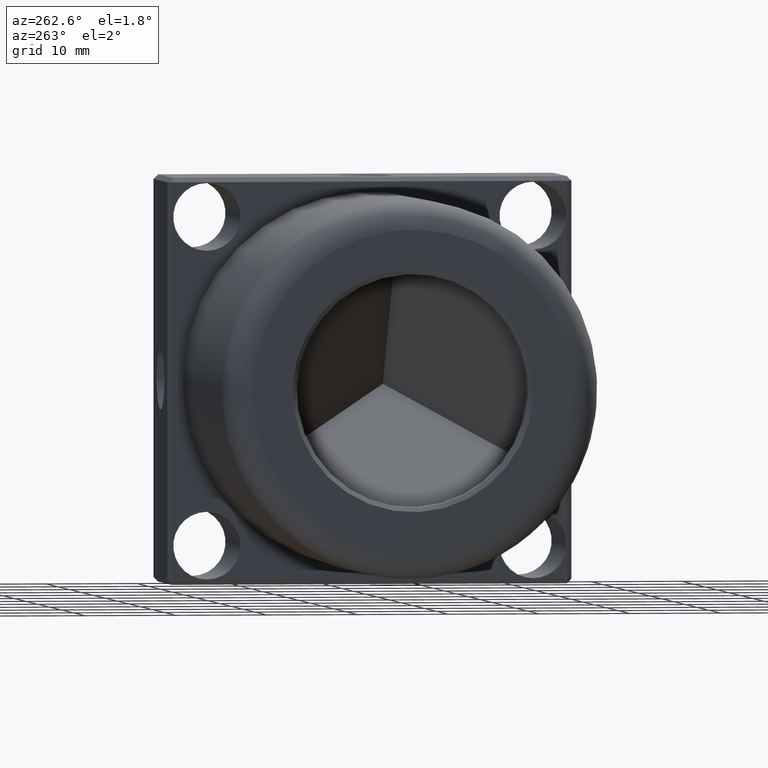
[diagram: clean part render]
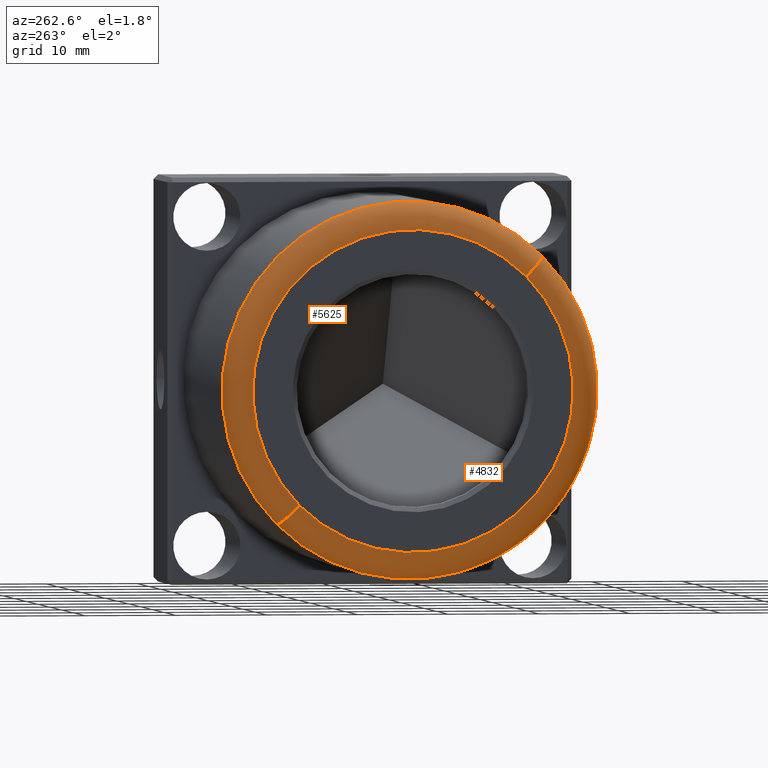
[diagram: same view with one multi-face feature highlighted, each face labeled with its STEP entity id]
A machine part, auxiliary view. The highlighted faces form ONE feature: a constant-radius fillet chain: 2 tangent blend faces with common blend radius 3 mm. The faces share edges in the B-rep.
Their STEP definitions:
[1] entity #5625 (Torus):
#118 = AXIS2_PLACEMENT_3D ( 'NONE', #7734, #11376, #5766 ) ;
#164 = ORIENTED_EDGE ( 'NONE', *, *, #4706, .F. ) ;
#208 = DIRECTION ( 'NONE',  ( -1.465710528437472200E-017, -0.7071067811865410200, -0.7071067811865540100 ) ) ;
#450 = CARTESIAN_POINT ( 'NONE',  ( 2.999999999999998200, -14.60175503150233900, 14.60175503150207600 ) ) ;
#482 = EDGE_CURVE ( 'NONE', #9974, #8389, #8997, .T. ) ;
#928 = CIRCLE ( 'NONE', #5927, 20.64999999999999900 ) ;
#1043 = AXIS2_PLACEMENT_3D ( 'NONE', #1088, #7632, #2011 ) ;
#1088 = CARTESIAN_POINT ( 'NONE',  ( 3.000000000000001300, 12.48043468794268000, -12.48043468794244700 ) ) ;
#1771 = ORIENTED_EDGE ( 'NONE', *, *, #5656, .F. ) ;
#2011 = DIRECTION ( 'NONE',  ( 0.0000000000000000000, -0.7071067811865541200, 0.7071067811865408000 ) ) ;
#2558 = CIRCLE ( 'NONE', #6806, 17.64999999999999900 ) ;
#3344 = CIRCLE ( 'NONE', #11631, 3.000000000000000400 ) ;
#4000 = EDGE_CURVE ( 'NONE', #8892, #8389, #2558, .T. ) ;
#4519 = FACE_OUTER_BOUND ( 'NONE', #7840, .T. ) ;
#4706 = EDGE_CURVE ( 'NONE', #9974, #12001, #928, .T. ) ;
#5046 = DIRECTION ( 'NONE',  ( -1.000000000000000000, 6.489919646852779600E-017, -4.417091939023369800E-017 ) ) ;
#5281 = CARTESIAN_POINT ( 'NONE',  ( 3.000000000000001800, 14.60175503150234300, -14.60175503150207600 ) ) ;
#5538 = DIRECTION ( 'NONE',  ( 1.000000000000000000, -6.489919646852779600E-017, 4.417091939023369800E-017 ) ) ;
#5625 = ADVANCED_FACE ( 'NONE', ( #4519 ), #10821, .T. ) ;
#5656 = EDGE_CURVE ( 'NONE', #12001, #8892, #3344, .T. ) ;
#5766 = DIRECTION ( 'NONE',  ( -7.712421854853279000E-017, -0.7071067811865540100, 0.7071067811865410200 ) ) ;
#5802 = CARTESIAN_POINT ( 'NONE',  ( 2.999999999999998700, -12.48043468794267800, 12.48043468794244900 ) ) ;
#5907 = ORIENTED_EDGE ( 'NONE', *, *, #4000, .F. ) ;
#5927 = AXIS2_PLACEMENT_3D ( 'NONE', #11157, #5538, #12097 ) ;
#6767 = DIRECTION ( 'NONE',  ( 0.0000000000000000000, 0.7071067811865541200, -0.7071067811865408000 ) ) ;
#6806 = AXIS2_PLACEMENT_3D ( 'NONE', #10677, #5046, #11602 ) ;
#7627 = CARTESIAN_POINT ( 'NONE',  ( 1.331142532182104700E-015, 12.48043468794268000, -12.48043468794244700 ) ) ;
#7632 = DIRECTION ( 'NONE',  ( 1.465710528437471500E-017, 0.7071067811865409100, 0.7071067811865541200 ) ) ;
#7734 = CARTESIAN_POINT ( 'NONE',  ( 3.000000000000000000, -1.946975894055834000E-016, 1.325127581707011100E-016 ) ) ;
#7840 = EDGE_LOOP ( 'NONE', ( #164, #8012, #5907, #1771 ) ) ;
#8012 = ORIENTED_EDGE ( 'NONE', *, *, #482, .T. ) ;
#8389 = VERTEX_POINT ( 'NONE', #7627 ) ;
#8892 = VERTEX_POINT ( 'NONE', #10458 ) ;
#8997 = CIRCLE ( 'NONE', #1043, 3.000000000000000400 ) ;
#9974 = VERTEX_POINT ( 'NONE', #5281 ) ;
#10458 = CARTESIAN_POINT ( 'NONE',  ( -1.114302097685003900E-015, -12.48043468794267800, 12.48043468794244900 ) ) ;
#10677 = CARTESIAN_POINT ( 'NONE',  ( 0.0000000000000000000, 0.0000000000000000000, 0.0000000000000000000 ) ) ;
#10821 = TOROIDAL_SURFACE ( 'NONE', #118, 17.64999999999999900, 3.000000000000000000 ) ;
#11157 = CARTESIAN_POINT ( 'NONE',  ( 3.000000000000000000, -1.946975894055834000E-016, 1.325127581707011100E-016 ) ) ;
#11376 = DIRECTION ( 'NONE',  ( -1.000000000000000000, 6.489919646852779600E-017, -4.417091939023369800E-017 ) ) ;
#11602 = DIRECTION ( 'NONE',  ( -7.712421854853281400E-017, -0.7071067811865540100, 0.7071067811865410200 ) ) ;
#11631 = AXIS2_PLACEMENT_3D ( 'NONE', #5802, #208, #6767 ) ;
#12001 = VERTEX_POINT ( 'NONE', #450 ) ;
#12097 = DIRECTION ( 'NONE',  ( -8.400597946618920700E-017, -0.7071067811865541200, 0.7071067811865411300 ) ) ;
[2] entity #4832 (Torus):
#208 = DIRECTION ( 'NONE',  ( -1.465710528437472200E-017, -0.7071067811865410200, -0.7071067811865540100 ) ) ;
#450 = CARTESIAN_POINT ( 'NONE',  ( 2.999999999999998200, -14.60175503150233900, 14.60175503150207600 ) ) ;
#482 = EDGE_CURVE ( 'NONE', #9974, #8389, #8997, .T. ) ;
#599 = DIRECTION ( 'NONE',  ( -8.400597946618920700E-017, -0.7071067811865541200, 0.7071067811865411300 ) ) ;
#1043 = AXIS2_PLACEMENT_3D ( 'NONE', #1088, #7632, #2011 ) ;
#1062 = EDGE_LOOP ( 'NONE', ( #5267, #4536, #3529, #10384 ) ) ;
#1088 = CARTESIAN_POINT ( 'NONE',  ( 3.000000000000001300, 12.48043468794268000, -12.48043468794244700 ) ) ;
#1259 = DIRECTION ( 'NONE',  ( -1.000000000000000000, 6.489919646852779600E-017, -4.417091939023369800E-017 ) ) ;
#2011 = DIRECTION ( 'NONE',  ( 0.0000000000000000000, -0.7071067811865541200, 0.7071067811865408000 ) ) ;
#2030 = DIRECTION ( 'NONE',  ( -7.712421854853279000E-017, -0.7071067811865540100, 0.7071067811865410200 ) ) ;
#3012 = AXIS2_PLACEMENT_3D ( 'NONE', #6884, #1259, #7810 ) ;
#3344 = CIRCLE ( 'NONE', #11631, 3.000000000000000400 ) ;
#3529 = ORIENTED_EDGE ( 'NONE', *, *, #5656, .T. ) ;
#3960 = EDGE_CURVE ( 'NONE', #8389, #8892, #8444, .T. ) ;
#4279 = TOROIDAL_SURFACE ( 'NONE', #10068, 17.64999999999999900, 3.000000000000000000 ) ;
#4536 = ORIENTED_EDGE ( 'NONE', *, *, #8121, .F. ) ;
#4726 = CARTESIAN_POINT ( 'NONE',  ( 3.000000000000000000, -1.946975894055834000E-016, 1.325127581707011100E-016 ) ) ;
#4832 = ADVANCED_FACE ( 'NONE', ( #5160 ), #4279, .T. ) ;
#4965 = AXIS2_PLACEMENT_3D ( 'NONE', #11822, #6210, #599 ) ;
#5160 = FACE_OUTER_BOUND ( 'NONE', #1062, .T. ) ;
#5267 = ORIENTED_EDGE ( 'NONE', *, *, #482, .F. ) ;
#5281 = CARTESIAN_POINT ( 'NONE',  ( 3.000000000000001800, 14.60175503150234300, -14.60175503150207600 ) ) ;
#5646 = CIRCLE ( 'NONE', #4965, 20.64999999999999900 ) ;
#5656 = EDGE_CURVE ( 'NONE', #12001, #8892, #3344, .T. ) ;
#5802 = CARTESIAN_POINT ( 'NONE',  ( 2.999999999999998700, -12.48043468794267800, 12.48043468794244900 ) ) ;
#6210 = DIRECTION ( 'NONE',  ( 1.000000000000000000, -6.489919646852779600E-017, 4.417091939023369800E-017 ) ) ;
#6767 = DIRECTION ( 'NONE',  ( 0.0000000000000000000, 0.7071067811865541200, -0.7071067811865408000 ) ) ;
#6884 = CARTESIAN_POINT ( 'NONE',  ( 0.0000000000000000000, 0.0000000000000000000, 0.0000000000000000000 ) ) ;
#7627 = CARTESIAN_POINT ( 'NONE',  ( 1.331142532182104700E-015, 12.48043468794268000, -12.48043468794244700 ) ) ;
#7632 = DIRECTION ( 'NONE',  ( 1.465710528437471500E-017, 0.7071067811865409100, 0.7071067811865541200 ) ) ;
#7654 = DIRECTION ( 'NONE',  ( -1.000000000000000000, 6.489919646852779600E-017, -4.417091939023369800E-017 ) ) ;
#7810 = DIRECTION ( 'NONE',  ( -7.712421854853281400E-017, -0.7071067811865540100, 0.7071067811865410200 ) ) ;
#8121 = EDGE_CURVE ( 'NONE', #12001, #9974, #5646, .T. ) ;
#8389 = VERTEX_POINT ( 'NONE', #7627 ) ;
#8444 = CIRCLE ( 'NONE', #3012, 17.64999999999999900 ) ;
#8892 = VERTEX_POINT ( 'NONE', #10458 ) ;
#8997 = CIRCLE ( 'NONE', #1043, 3.000000000000000400 ) ;
#9974 = VERTEX_POINT ( 'NONE', #5281 ) ;
#10068 = AXIS2_PLACEMENT_3D ( 'NONE', #4726, #7654, #2030 ) ;
#10384 = ORIENTED_EDGE ( 'NONE', *, *, #3960, .F. ) ;
#10458 = CARTESIAN_POINT ( 'NONE',  ( -1.114302097685003900E-015, -12.48043468794267800, 12.48043468794244900 ) ) ;
#11631 = AXIS2_PLACEMENT_3D ( 'NONE', #5802, #208, #6767 ) ;
#11822 = CARTESIAN_POINT ( 'NONE',  ( 3.000000000000000000, -1.946975894055834000E-016, 1.325127581707011100E-016 ) ) ;
#12001 = VERTEX_POINT ( 'NONE', #450 ) ;